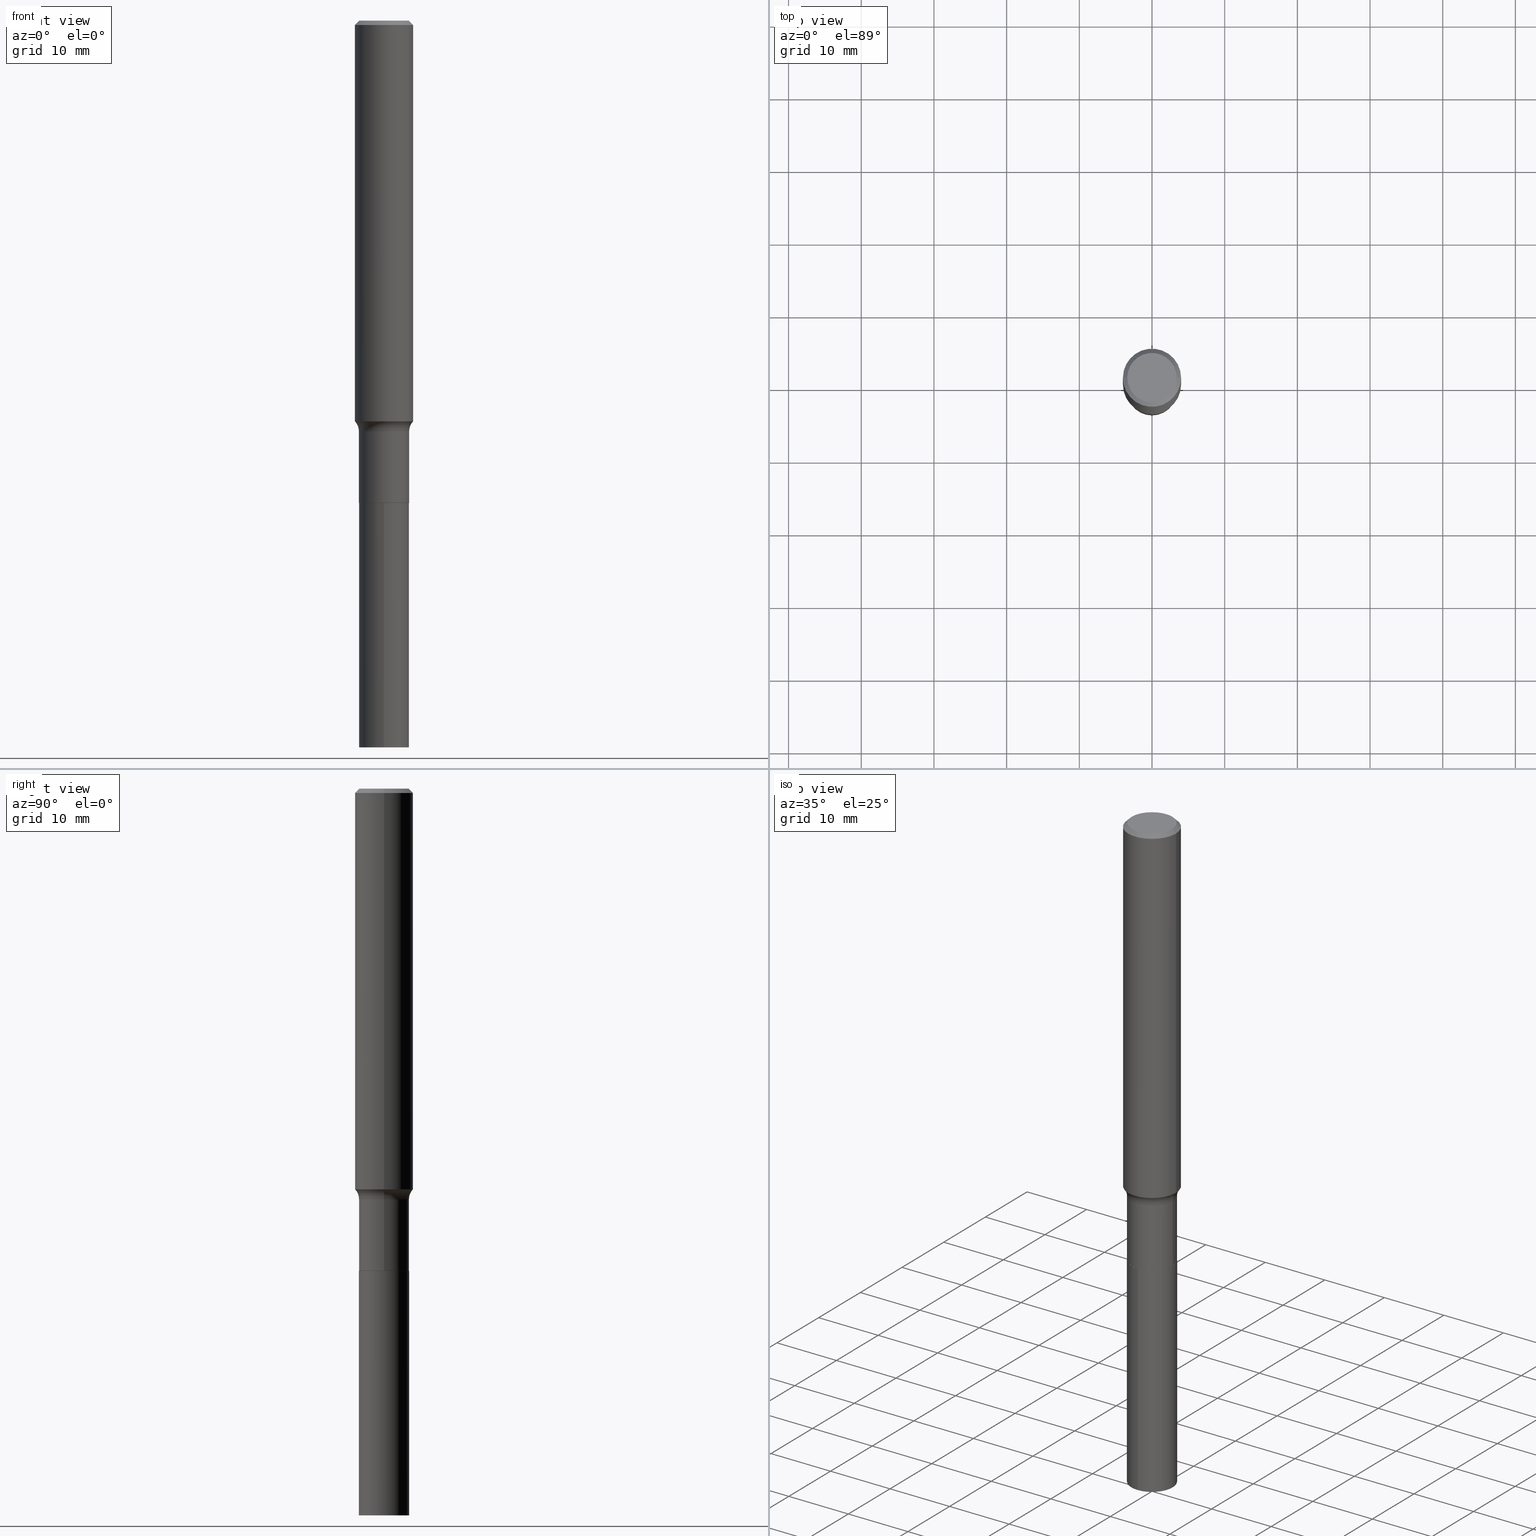
[diagram: canonical four-view strip — front | top / right | iso, engineering-drawing reading convention]
A machine part, canonical four-view strip (front | top / right | iso — engineering-drawing reading convention). The complete STEP part file that produces these views, byte-faithful:
ISO-10303-21;
HEADER;
FILE_DESCRIPTION (( 'STEP AP203' ),
    '1' );
FILE_NAME ('58892.STEP',
    '2024-04-19T14:48:13',
    ( '' ),
    ( '' ),
    'SwSTEP 2.0',
    'SolidWorks 2023',
    '' );
FILE_SCHEMA (( 'CONFIG_CONTROL_DESIGN' ));
ENDSEC;

DATA;
#1 = MANIFOLD_SOLID_BREP ( 'Body-Move/Copy2[2]', #74 ) ;
#2 = APPROVAL_DATE_TIME ( #335, #308 ) ;
#3 = CARTESIAN_POINT ( 'NONE',  ( 6.390009990561761936E-29, -9.123240738397140526E-15, -2.613000000000000433 ) ) ;
#4 = VERTEX_POINT ( 'NONE', #388 ) ;
#5 = PLANE ( 'NONE',  #392 ) ;
#6 = ORIENTED_EDGE ( 'NONE', *, *, #352, .F. ) ;
#7 = PERSON_AND_ORGANIZATION ( #11, #245 ) ;
#8 = VERTEX_POINT ( 'NONE', #382 ) ;
#9 = EDGE_LOOP ( 'NONE', ( #42, #71, #271, #145 ) ) ;
#10 = CALENDAR_DATE ( 2024, 19, 4 ) ;
#11 = PERSON ( 'UNSPECIFIED', 'UNSPECIFIED', 'UNSPECIFIED', ('UNSPECIFIED'), ('UNSPECIFIED'), ('UNSPECIFIED') ) ;
#12 = EDGE_CURVE ( 'NONE', #379, #257, #125, .T. ) ;
#13 = DIRECTION ( 'NONE',  ( -6.982962677686265922E-15, -1.000000000000000000, 4.017423520094504617E-15 ) ) ;
#14 = FACE_OUTER_BOUND ( 'NONE', #320, .T. ) ;
#15 = DIRECTION ( 'NONE',  ( -2.445468806185136597E-29, 3.491481338843145583E-15, 1.000000000000000000 ) ) ;
#16 = CIRCLE ( 'NONE', #311, 0.1359999999999999543 ) ;
#17 = CIRCLE ( 'NONE', #357, 0.1360000000000000098 ) ;
#18 = ORIENTED_EDGE ( 'NONE', *, *, #200, .T. ) ;
#19 = CARTESIAN_POINT ( 'NONE',  ( 6.390009990561761936E-29, -9.123240738397140526E-15, -2.613000000000000433 ) ) ;
#20 = CC_DESIGN_PERSON_AND_ORGANIZATION_ASSIGNMENT ( #48, #149, ( #127 ) ) ;
#21 = EDGE_CURVE ( 'NONE', #8, #210, #16, .T. ) ;
#22 = CARTESIAN_POINT ( 'NONE',  ( 5.441657187523166048E-29, -7.769244275193768716E-15, -2.225200000000000511 ) ) ;
#23 = DIRECTION ( 'NONE',  ( -2.445468806185136877E-29, 3.491481338843145188E-15, 1.000000000000000000 ) ) ;
#24 = AXIS2_PLACEMENT_3D ( 'NONE', #214, #202, #101 ) ;
#25 = ORIENTED_EDGE ( 'NONE', *, *, #64, .F. ) ;
#26 = AXIS2_PLACEMENT_3D ( 'NONE', #255, #282, #173 ) ;
#27 = PLANE ( 'NONE',  #204 ) ;
#28 = ADVANCED_FACE ( 'NONE', ( #163 ), #290, .T. ) ;
#29 = ORIENTED_EDGE ( 'NONE', *, *, #153, .F. ) ;
#30 = CARTESIAN_POINT ( 'NONE',  ( -0.2159999999999999698, -6.234471965951952529E-15, -2.225200000000000511 ) ) ;
#31 = DIRECTION ( 'NONE',  ( 1.000000000000000000, -6.982962677686264344E-15, 0.000000000000000000 ) ) ;
#32 = EDGE_CURVE ( 'NONE', #47, #358, #391, .T. ) ;
#33 = EDGE_LOOP ( 'NONE', ( #100, #295, #50, #450 ) ) ;
#34 = CYLINDRICAL_SURFACE ( 'NONE', #119, 0.1575000000000001676 ) ;
#35 = ORIENTED_EDGE ( 'NONE', *, *, #365, .T. ) ;
#36 = DIRECTION ( 'NONE',  ( -2.445468806185136597E-29, 3.491481338843145583E-15, 1.000000000000000000 ) ) ;
#37 = CARTESIAN_POINT ( 'NONE',  ( 9.627366479566132593E-29, -1.374659816557931194E-14, -3.937000000000000277 ) ) ;
#38 = ADVANCED_FACE ( 'NONE', ( #281 ), #131, .T. ) ;
#39 = LINE ( 'NONE', #105, #244 ) ;
#40 = ADVANCED_BREP_SHAPE_REPRESENTATION ( '58892', ( #157, #1, #150 ), #366 ) ;
#41 = CARTESIAN_POINT ( 'NONE',  ( 5.777420054612421104E-31, -8.248624663016984002E-17, -0.02362500000000014588 ) ) ;
#42 = ORIENTED_EDGE ( 'NONE', *, *, #419, .F. ) ;
#43 = CARTESIAN_POINT ( 'NONE',  ( -0.1575000000000002787, -6.459613645325440815E-15, -2.170631236041119738 ) ) ;
#44 = APPROVAL_STATUS ( 'not_yet_approved' ) ;
#45 = CONICAL_SURFACE ( 'NONE', #452, 0.1575000000000000011, 0.7853981633974449483 ) ;
#46 = ORIENTED_EDGE ( 'NONE', *, *, #200, .F. ) ;
#47 = VERTEX_POINT ( 'NONE', #66 ) ;
#48 = PERSON_AND_ORGANIZATION ( #11, #245 ) ;
#49 = ORIENTED_EDGE ( 'NONE', *, *, #341, .F. ) ;
#50 = ORIENTED_EDGE ( 'NONE', *, *, #212, .F. ) ;
#51 = AXIS2_PLACEMENT_3D ( 'NONE', #309, #451, #124 ) ;
#52 = PRODUCT_DEFINITION_SHAPE ( 'NONE', 'NONE',  #385 ) ;
#53 = LOCAL_TIME ( 10, 48, 13.00000000000000000, #113 ) ;
#54 = PERSON_AND_ORGANIZATION ( #11, #245 ) ;
#55 = DIRECTION ( 'NONE',  ( -1.000000000000000000, 6.982962677686265922E-15, 0.000000000000000000 ) ) ;
#56 = DIRECTION ( 'NONE',  ( 0.7071067811865451302, -7.319954787623248157E-15, -0.7071067811865499042 ) ) ;
#57 = CARTESIAN_POINT ( 'NONE',  ( 0.000000000000000000, 0.000000000000000000, 0.000000000000000000 ) ) ;
#58 = EDGE_LOOP ( 'NONE', ( #6, #224, #353, #337 ) ) ;
#59 = CARTESIAN_POINT ( 'NONE',  ( -9.496829241652681619E-16, -0.1360000000000091136, -2.612999999999999101 ) ) ;
#60 = VECTOR ( 'NONE', #162, 39.37007874015748854 ) ;
#61 = CC_DESIGN_DATE_AND_TIME_ASSIGNMENT ( #191, #378, ( #385 ) ) ;
#62 = DIRECTION ( 'NONE',  ( -2.445468806185136597E-29, 3.491481338843145583E-15, 1.000000000000000000 ) ) ;
#63 = CARTESIAN_POINT ( 'NONE',  ( 0.1359999999999999543, -9.496829241653320596E-16, 6.631600415082470604E-30 ) ) ;
#64 = EDGE_CURVE ( 'NONE', #257, #8, #229, .T. ) ;
#65 = AXIS2_PLACEMENT_3D ( 'NONE', #188, #15, #338 ) ;
#66 = CARTESIAN_POINT ( 'NONE',  ( -0.1355000000000000093, -8.157806104268093113E-15, -2.613000000000000433 ) ) ;
#67 = CARTESIAN_POINT ( 'NONE',  ( -0.1355000000000000093, -8.160455331442205103E-15, -2.613000000000000433 ) ) ;
#68 = PLANE ( 'NONE',  #253 ) ;
#69 = DIRECTION ( 'NONE',  ( -2.445133299852242876E-29, 3.491961803007683385E-15, 1.000000000000000000 ) ) ;
#70 = DIRECTION ( 'NONE',  ( -2.445133299852243437E-29, 3.491961803007682991E-15, 1.000000000000000000 ) ) ;
#71 = ORIENTED_EDGE ( 'NONE', *, *, #352, .T. ) ;
#72 = FACE_OUTER_BOUND ( 'NONE', #238, .T. ) ;
#73 = EDGE_LOOP ( 'NONE', ( #349, #359, #287, #428 ) ) ;
#74 = CLOSED_SHELL ( 'NONE', ( #129, #28, #233, #141, #99, #438, #446, #404, #416, #322, #269, #316 ) ) ;
#75 = DIRECTION ( 'NONE',  ( -2.445468806185136597E-29, 3.491481338843145583E-15, 1.000000000000000000 ) ) ;
#76 = VECTOR ( 'NONE', #268, 39.37007874015748143 ) ;
#77 = EDGE_CURVE ( 'NONE', #275, #207, #90, .T. ) ;
#78 = DIRECTION ( 'NONE',  ( -1.000000000000000000, 6.982962677686265922E-15, 0.000000000000000000 ) ) ;
#79 = DIRECTION ( 'NONE',  ( -1.000000000000000000, 6.982962677686265922E-15, -4.876176775795935793E-29 ) ) ;
#80 = EDGE_CURVE ( 'NONE', #285, #210, #456, .T. ) ;
#81 = ADVANCED_FACE ( 'NONE', ( #421 ), #27, .F. ) ;
#82 = CALENDAR_DATE ( 2024, 19, 4 ) ;
#83 = CIRCLE ( 'NONE', #468, 0.1360000000000000098 ) ;
#84 = VERTEX_POINT ( 'NONE', #165 ) ;
#85 = DIRECTION ( 'NONE',  ( 1.000000000000000000, -6.982962677686265922E-15, 4.876176775795935793E-29 ) ) ;
#86 = EDGE_LOOP ( 'NONE', ( #300, #377 ) ) ;
#87 = DIRECTION ( 'NONE',  ( -2.445468806185136597E-29, 3.491481338843145583E-15, 1.000000000000000000 ) ) ;
#88 = APPROVAL_DATE_TIME ( #178, #466 ) ;
#89 = ORIENTED_EDGE ( 'NONE', *, *, #151, .T. ) ;
#90 = CIRCLE ( 'NONE', #356, 0.1338749999999999940 ) ;
#91 = AXIS2_PLACEMENT_3D ( 'NONE', #304, #118, #120 ) ;
#92 = LOCAL_TIME ( 10, 48, 13.00000000000000000, #409 ) ;
#93 = DIRECTION ( 'NONE',  ( -2.445133299852243437E-29, 3.491961803007682991E-15, 1.000000000000000000 ) ) ;
#94 = LINE ( 'NONE', #194, #76 ) ;
#95 = DIRECTION ( 'NONE',  ( 1.000000000000000000, -6.982962677686262766E-15, 0.000000000000000000 ) ) ;
#96 = DIRECTION ( 'NONE',  ( 1.000000000000000000, -6.982962677686267499E-15, 0.000000000000000000 ) ) ;
#97 = FACE_OUTER_BOUND ( 'NONE', #317, .T. ) ;
#98 = CARTESIAN_POINT ( 'NONE',  ( 9.627810689950883669E-29, -1.374596203102546341E-14, -3.937000000000000277 ) ) ;
#99 = ADVANCED_FACE ( 'NONE', ( #314 ), #454, .T. ) ;
#100 = ORIENTED_EDGE ( 'NONE', *, *, #266, .T. ) ;
#101 = DIRECTION ( 'NONE',  ( -6.982962677686265922E-15, -1.000000000000000000, 4.017423520094504617E-15 ) ) ;
#102 = ORIENTED_EDGE ( 'NONE', *, *, #77, .F. ) ;
#103 = AXIS2_PLACEMENT_3D ( 'NONE', #3, #333, #326 ) ;
#104 = DIRECTION ( 'NONE',  ( 1.000000000000000000, -6.982962677686267499E-15, 4.876176775795935793E-29 ) ) ;
#105 = CARTESIAN_POINT ( 'NONE',  ( -0.1575000000000001676, 1.119104808822158984E-15, -7.747322767151485392E-30 ) ) ;
#106 = EDGE_LOOP ( 'NONE', ( #180, #230, #331, #375 ) ) ;
#107 = CARTESIAN_POINT ( 'NONE',  ( 0.000000000000000000, 0.000000000000000000, 0.000000000000000000 ) ) ;
#108 = DIRECTION ( 'NONE',  ( 0.7071067811860403118, -2.468850131076945266E-15, 0.7071067811870545006 ) ) ;
#109 = ORIENTED_EDGE ( 'NONE', *, *, #380, .T. ) ;
#110 = PERSON_AND_ORGANIZATION ( #11, #245 ) ;
#111 = CARTESIAN_POINT ( 'NONE',  ( -9.674237826946843796E-30, -1.965950466082476908E-14, -2.612999999999999545 ) ) ;
#112 = AXIS2_PLACEMENT_3D ( 'NONE', #41, #75, #256 ) ;
#113 = COORDINATED_UNIVERSAL_TIME_OFFSET ( 5, 0, .BEHIND. ) ;
#114 = ORIENTED_EDGE ( 'NONE', *, *, #21, .F. ) ;
#115 = DATE_AND_TIME ( #82, #179 ) ;
#116 = DIRECTION ( 'NONE',  ( 1.000000000000000000, -6.982962677686260400E-15, 0.000000000000000000 ) ) ;
#117 = CALENDAR_DATE ( 2024, 19, 4 ) ;
#118 = DIRECTION ( 'NONE',  ( -2.445133299852243437E-29, 3.491961803007682991E-15, 1.000000000000000000 ) ) ;
#119 = AXIS2_PLACEMENT_3D ( 'NONE', #107, #286, #405 ) ;
#120 = DIRECTION ( 'NONE',  ( -6.982962677686265922E-15, -1.000000000000000000, 4.017423520094504617E-15 ) ) ;
#121 = EDGE_CURVE ( 'NONE', #84, #4, #373, .T. ) ;
#122 = UNCERTAINTY_MEASURE_WITH_UNIT (LENGTH_MEASURE( 1.000000000000000082E-05 ), #132, 'distance_accuracy_value', 'NONE');
#123 = DIRECTION ( 'NONE',  ( -2.445468806185136597E-29, 3.491481338843145583E-15, 1.000000000000000000 ) ) ;
#124 = DIRECTION ( 'NONE',  ( -6.982962677686265922E-15, -1.000000000000000000, 4.017423520094504617E-15 ) ) ;
#125 = CIRCLE ( 'NONE', #400, 0.1575000000000003064 ) ;
#126 = VECTOR ( 'NONE', #135, 39.37007874015748143 ) ;
#127 = PRODUCT_DEFINITION_FORMATION_WITH_SPECIFIED_SOURCE ( 'ANY', '', #344, .NOT_KNOWN. ) ;
#128 = DIRECTION ( 'NONE',  ( 7.105427357601001859E-15, 1.000000000000000000, -3.491481338843145583E-15 ) ) ;
#129 = ADVANCED_FACE ( 'NONE', ( #209 ), #408, .T. ) ;
#130 = DIRECTION ( 'NONE',  ( -2.445468806185136597E-29, 3.491481338843145583E-15, 1.000000000000000000 ) ) ;
#131 = CYLINDRICAL_SURFACE ( 'NONE', #24, 0.1360000000000000098 ) ;
#132 =( CONVERSION_BASED_UNIT ( 'INCH', #457 ) LENGTH_UNIT ( ) NAMED_UNIT ( #420 ) );
#133 = TOROIDAL_SURFACE ( 'NONE', #460, 0.2159999999999999698, 0.07999999999999996003 ) ;
#134 = AXIS2_PLACEMENT_3D ( 'NONE', #397, #292, #172 ) ;
#135 = DIRECTION ( 'NONE',  ( -0.7071067811865451302, 2.468850131082231817E-15, -0.7071067811865499042 ) ) ;
#136 = CC_DESIGN_APPROVAL ( #466, ( #319 ) ) ;
#137 = CC_DESIGN_PERSON_AND_ORGANIZATION_ASSIGNMENT ( #406, #444, ( #319 ) ) ;
#138 = ORIENTED_EDGE ( 'NONE', *, *, #328, .F. ) ;
#139 = CARTESIAN_POINT ( 'NONE',  ( 0.1575000000000001676, -1.099816621735588269E-15, 7.679978421878606441E-30 ) ) ;
#140 = DIRECTION ( 'NONE',  ( -2.445468806185136597E-29, 3.491481338843145583E-15, 1.000000000000000000 ) ) ;
#141 = ADVANCED_FACE ( 'NONE', ( #355 ), #133, .F. ) ;
#142 = CIRCLE ( 'NONE', #273, 0.1360000000000000098 ) ;
#143 = PERSON_AND_ORGANIZATION_ROLE ( 'creator' ) ;
#144 = EDGE_CURVE ( 'NONE', #210, #8, #258, .T. ) ;
#145 = ORIENTED_EDGE ( 'NONE', *, *, #121, .F. ) ;
#146 = APPROVAL_ROLE ( '' ) ;
#147 = DIRECTION ( 'NONE',  ( -2.438088387897960049E-29, 3.491481338843145188E-15, 1.000000000000000000 ) ) ;
#148 = ORIENTED_EDGE ( 'NONE', *, *, #280, .F. ) ;
#149 = PERSON_AND_ORGANIZATION_ROLE ( 'design_supplier' ) ;
#150 = AXIS2_PLACEMENT_3D ( 'NONE', #223, #434, #262 ) ;
#151 = EDGE_CURVE ( 'NONE', #263, #398, #422, .T. ) ;
#152 = EDGE_LOOP ( 'NONE', ( #248, #278 ) ) ;
#153 = EDGE_CURVE ( 'NONE', #47, #261, #390, .T. ) ;
#154 = ORIENTED_EDGE ( 'NONE', *, *, #419, .T. ) ;
#155 = SECURITY_CLASSIFICATION_LEVEL ( 'unclassified' ) ;
#156 = LINE ( 'NONE', #384, #215 ) ;
#157 = MANIFOLD_SOLID_BREP ( 'Body-Move/Copy2[1]', #177 ) ;
#158 = CARTESIAN_POINT ( 'NONE',  ( 9.627366479566132593E-29, -1.374659816557931194E-14, -3.937000000000000277 ) ) ;
#159 = EDGE_CURVE ( 'NONE', #398, #227, #231, .T. ) ;
#160 = AXIS2_PLACEMENT_3D ( 'NONE', #57, #240, #203 ) ;
#161 = EDGE_CURVE ( 'NONE', #207, #4, #156, .T. ) ;
#162 = DIRECTION ( 'NONE',  ( -0.7071067811860403118, 7.493145998868519270E-15, 0.7071067811870545006 ) ) ;
#163 = FACE_OUTER_BOUND ( 'NONE', #190, .T. ) ;
#164 = CIRCLE ( 'NONE', #91, 0.1360000000000000098 ) ;
#165 = CARTESIAN_POINT ( 'NONE',  ( -0.1575000000000000011, -2.711497541566724726E-15, -0.02362500000000014588 ) ) ;
#166 = CARTESIAN_POINT ( 'NONE',  ( 5.441657187523166048E-29, -7.769244275193768716E-15, -2.225200000000000511 ) ) ;
#167 = DIRECTION ( 'NONE',  ( -6.982962677686265922E-15, -1.000000000000000000, 3.491961803007683385E-15 ) ) ;
#168 = DIRECTION ( 'NONE',  ( -6.982962677686265922E-15, -1.000000000000000000, 4.017423520094504617E-15 ) ) ;
#169 = PRODUCT_RELATED_PRODUCT_CATEGORY ( 'detail', '', ( #344 ) ) ;
#170 = EDGE_LOOP ( 'NONE', ( #25, #313, #362, #413 ) ) ;
#171 = CIRCLE ( 'NONE', #112, 0.1575000000000000011 ) ;
#172 = DIRECTION ( 'NONE',  ( 1.000000000000000000, -6.982962677686265922E-15, 4.883557194083112340E-29 ) ) ;
#173 = DIRECTION ( 'NONE',  ( 6.982962677686265922E-15, 1.000000000000000000, -3.491961803007683385E-15 ) ) ;
#174 = DIRECTION ( 'NONE',  ( -2.445468806185136877E-29, 3.491481338843145188E-15, 1.000000000000000000 ) ) ;
#175 = ORIENTED_EDGE ( 'NONE', *, *, #32, .F. ) ;
#176 = EDGE_CURVE ( 'NONE', #411, #227, #94, .T. ) ;
#177 = CLOSED_SHELL ( 'NONE', ( #185, #81, #38, #431 ) ) ;
#178 = DATE_AND_TIME ( #412, #53 ) ;
#179 = LOCAL_TIME ( 10, 48, 13.00000000000000000, #267 ) ;
#180 = ORIENTED_EDGE ( 'NONE', *, *, #212, .T. ) ;
#181 = APPLICATION_PROTOCOL_DEFINITION ( 'international standard', 'config_control_design', 1994, #449 ) ;
#182 = CARTESIAN_POINT ( 'NONE',  ( -0.1360000000000000098, -7.479031515827007153E-15, -2.612499999999999378 ) ) ;
#183 = ORIENTED_EDGE ( 'NONE', *, *, #32, .T. ) ;
#184 = COORDINATED_UNIVERSAL_TIME_OFFSET ( 5, 0, .BEHIND. ) ;
#185 = ADVANCED_FACE ( 'NONE', ( #14 ), #234, .T. ) ;
#186 = EDGE_LOOP ( 'NONE', ( #29, #183, #109, #148 ) ) ;
#187 = EDGE_CURVE ( 'NONE', #263, #411, #142, .T. ) ;
#188 = CARTESIAN_POINT ( 'NONE',  ( 6.390009990561761936E-29, -9.123240738397140526E-15, -2.613000000000000433 ) ) ;
#189 = DATE_TIME_ROLE ( 'classification_date' ) ;
#190 = EDGE_LOOP ( 'NONE', ( #138, #250, #372, #242 ) ) ;
#191 = DATE_AND_TIME ( #10, #299 ) ;
#192 = CARTESIAN_POINT ( 'NONE',  ( 6.390009990561761936E-29, -9.123240738397140526E-15, -2.613000000000000433 ) ) ;
#193 = APPROVAL ( #264, 'UNSPECIFIED' ) ;
#194 = CARTESIAN_POINT ( 'NONE',  ( -9.496829241652681619E-16, -0.1360000000000091136, -2.612999999999999101 ) ) ;
#195 = DIRECTION ( 'NONE',  ( 1.000000000000000000, -6.982962677686262766E-15, 0.000000000000000000 ) ) ;
#196 = CARTESIAN_POINT ( 'NONE',  ( 0.2159999999999999698, -9.277564213574001442E-15, -2.225200000000000511 ) ) ;
#197 = AXIS2_PLACEMENT_3D ( 'NONE', #19, #310, #31 ) ;
#198 = AXIS2_PLACEMENT_3D ( 'NONE', #196, #346, #95 ) ;
#199 = CARTESIAN_POINT ( 'NONE',  ( 5.308210977469644708E-29, -7.578718454147599996E-15, -2.170631236041119738 ) ) ;
#200 = EDGE_CURVE ( 'NONE', #227, #398, #164, .T. ) ;
#201 = DIRECTION ( 'NONE',  ( 1.000000000000000000, -6.982962677686267499E-15, 4.876176775795935232E-29 ) ) ;
#202 = DIRECTION ( 'NONE',  ( -2.445133299852243437E-29, 3.491961803007682991E-15, 1.000000000000000000 ) ) ;
#203 = DIRECTION ( 'NONE',  ( 1.000000000000000000, -6.982962677686267499E-15, 4.876176775795935793E-29 ) ) ;
#204 = AXIS2_PLACEMENT_3D ( 'NONE', #98, #69, #167 ) ;
#205 = VECTOR ( 'NONE', #23, 39.37007874015748143 ) ;
#206 = APPROVAL_PERSON_ORGANIZATION ( #298, #466, #340 ) ;
#207 = VERTEX_POINT ( 'NONE', #445 ) ;
#208 = DIRECTION ( 'NONE',  ( -2.445468806185136877E-29, 3.491481338843145188E-15, 1.000000000000000000 ) ) ;
#209 = FACE_OUTER_BOUND ( 'NONE', #33, .T. ) ;
#210 = VERTEX_POINT ( 'NONE', #270 ) ;
#211 = FACE_OUTER_BOUND ( 'NONE', #9, .T. ) ;
#212 = EDGE_CURVE ( 'NONE', #285, #261, #17, .T. ) ;
#213 = ORIENTED_EDGE ( 'NONE', *, *, #159, .T. ) ;
#214 = CARTESIAN_POINT ( 'NONE',  ( 6.390009990561760815E-29, -9.123240738397138949E-15, -2.612999999999999545 ) ) ;
#215 = VECTOR ( 'NONE', #56, 39.37007874015748143 ) ;
#216 = ORIENTED_EDGE ( 'NONE', *, *, #12, .T. ) ;
#217 = CARTESIAN_POINT ( 'NONE',  ( 9.663381206338327605E-16, 0.1359999999999908782, -2.613000000000000433 ) ) ;
#218 = CYLINDRICAL_SURFACE ( 'NONE', #312, 0.1359999999999999543 ) ;
#219 = DIRECTION ( 'NONE',  ( 2.445468806185136597E-29, -3.491481338843145583E-15, -1.000000000000000000 ) ) ;
#220 = APPROVAL_DATE_TIME ( #376, #193 ) ;
#221 = ORIENTED_EDGE ( 'NONE', *, *, #121, .T. ) ;
#222 = EDGE_CURVE ( 'NONE', #379, #210, #461, .T. ) ;
#223 = CARTESIAN_POINT ( 'NONE',  ( 0.000000000000000000, 0.000000000000000000, 0.000000000000000000 ) ) ;
#224 = ORIENTED_EDGE ( 'NONE', *, *, #64, .T. ) ;
#225 = FACE_OUTER_BOUND ( 'NONE', #186, .T. ) ;
#226 = SHAPE_DEFINITION_REPRESENTATION ( #52, #40 ) ;
#227 = VERTEX_POINT ( 'NONE', #59 ) ;
#228 = APPLICATION_PROTOCOL_DEFINITION ( 'international standard', 'config_control_design', 1994, #426 ) ;
#229 = CIRCLE ( 'NONE', #347, 0.07999999999999996003 ) ;
#230 = ORIENTED_EDGE ( 'NONE', *, *, #252, .T. ) ;
#231 = CIRCLE ( 'NONE', #51, 0.1360000000000000098 ) ;
#232 = CARTESIAN_POINT ( 'NONE',  ( 6.388787256158668014E-29, -9.121494997727716656E-15, -2.612499999999999378 ) ) ;
#233 = ADVANCED_FACE ( 'NONE', ( #97 ), #239, .T. ) ;
#234 = CYLINDRICAL_SURFACE ( 'NONE', #447, 0.1360000000000000098 ) ;
#235 = DIRECTION ( 'NONE',  ( -2.445468806185136597E-29, 3.491481338843145583E-15, 1.000000000000000000 ) ) ;
#236 = AXIS2_PLACEMENT_3D ( 'NONE', #166, #130, #279 ) ;
#237 = CC_DESIGN_APPROVAL ( #193, ( #127 ) ) ;
#238 = EDGE_LOOP ( 'NONE', ( #437, #102, #35, #221 ) ) ;
#239 = CYLINDRICAL_SURFACE ( 'NONE', #284, 0.1575000000000001676 ) ;
#240 = DIRECTION ( 'NONE',  ( -2.445468806185136597E-29, 3.491481338843145583E-15, 1.000000000000000000 ) ) ;
#241 = CARTESIAN_POINT ( 'NONE',  ( -0.1359999999999999543, 9.663381206337359278E-16, -6.689751722746669307E-30 ) ) ;
#242 = ORIENTED_EDGE ( 'NONE', *, *, #365, .F. ) ;
#243 = DIRECTION ( 'NONE',  ( -2.445133299852243437E-29, 3.491961803007683385E-15, 1.000000000000000000 ) ) ;
#244 = VECTOR ( 'NONE', #289, 39.37007874015748143 ) ;
#245 = ORGANIZATION ( 'UNSPECIFIED', 'UNSPECIFIED', '' ) ;
#246 = CARTESIAN_POINT ( 'NONE',  ( 9.663381206338000227E-16, 0.1359999999999908782, -2.613000000000000433 ) ) ;
#247 =( NAMED_UNIT ( * ) PLANE_ANGLE_UNIT ( ) SI_UNIT ( $, .RADIAN. ) );
#248 = ORIENTED_EDGE ( 'NONE', *, *, #330, .F. ) ;
#249 = CARTESIAN_POINT ( 'NONE',  ( 0.000000000000000000, 0.000000000000000000, 0.000000000000000000 ) ) ;
#250 = ORIENTED_EDGE ( 'NONE', *, *, #161, .T. ) ;
#251 = CARTESIAN_POINT ( 'NONE',  ( -9.496829241652358186E-16, -0.1360000000000137488, -3.936999999999999389 ) ) ;
#252 = EDGE_CURVE ( 'NONE', #261, #8, #351, .T. ) ;
#253 = AXIS2_PLACEMENT_3D ( 'NONE', #462, #433, #79 ) ;
#254 = CC_DESIGN_APPROVAL ( #308, ( #385 ) ) ;
#255 = CARTESIAN_POINT ( 'NONE',  ( 6.390009990561760815E-29, -9.123240738397138949E-15, -2.612999999999999545 ) ) ;
#256 = DIRECTION ( 'NONE',  ( 1.000000000000000000, -6.982962677686265922E-15, 0.000000000000000000 ) ) ;
#257 = VERTEX_POINT ( 'NONE', #43 ) ;
#258 = CIRCLE ( 'NONE', #236, 0.1359999999999999543 ) ;
#259 = APPROVAL_ROLE ( '' ) ;
#260 = CIRCLE ( 'NONE', #103, 0.1355000000000000093 ) ;
#261 = VERTEX_POINT ( 'NONE', #182 ) ;
#262 = DIRECTION ( 'NONE',  ( 1.000000000000000000, 0.000000000000000000, 0.000000000000000000 ) ) ;
#263 = VERTEX_POINT ( 'NONE', #410 ) ;
#264 = APPROVAL_STATUS ( 'not_yet_approved' ) ;
#265 = CARTESIAN_POINT ( 'NONE',  ( 5.777420054612421104E-31, -8.248624663016984002E-17, -0.02362500000000014588 ) ) ;
#266 = EDGE_CURVE ( 'NONE', #358, #47, #260, .T. ) ;
#267 = COORDINATED_UNIVERSAL_TIME_OFFSET ( 5, 0, .BEHIND. ) ;
#268 = DIRECTION ( 'NONE',  ( -2.445133299852243437E-29, 3.491961803007683385E-15, 1.000000000000000000 ) ) ;
#269 = ADVANCED_FACE ( 'NONE', ( #371 ), #5, .F. ) ;
#270 = CARTESIAN_POINT ( 'NONE',  ( 0.1359999999999999543, -8.718927199359099789E-15, -2.225200000000000511 ) ) ;
#271 = ORIENTED_EDGE ( 'NONE', *, *, #369, .T. ) ;
#272 = DIRECTION ( 'NONE',  ( -2.445468806185136597E-29, 3.491481338843145583E-15, 1.000000000000000000 ) ) ;
#273 = AXIS2_PLACEMENT_3D ( 'NONE', #158, #345, #448 ) ;
#274 = APPROVAL_PERSON_ORGANIZATION ( #110, #193, #146 ) ;
#275 = VERTEX_POINT ( 'NONE', #336 ) ;
#276 = DIRECTION ( 'NONE',  ( 1.000000000000000000, -6.982962677686266711E-15, 4.876170806578254279E-29 ) ) ;
#277 = DIRECTION ( 'NONE',  ( -2.445468806185136597E-29, 3.491481338843145583E-15, 1.000000000000000000 ) ) ;
#278 = ORIENTED_EDGE ( 'NONE', *, *, #187, .F. ) ;
#279 = DIRECTION ( 'NONE',  ( 1.000000000000000000, -6.982962677686262766E-15, 0.000000000000000000 ) ) ;
#280 = EDGE_CURVE ( 'NONE', #261, #285, #83, .T. ) ;
#281 = FACE_OUTER_BOUND ( 'NONE', #73, .T. ) ;
#282 = DIRECTION ( 'NONE',  ( 2.445133299852242876E-29, -3.491961803007683385E-15, -1.000000000000000000 ) ) ;
#283 = AXIS2_PLACEMENT_3D ( 'NONE', #423, #277, #350 ) ;
#284 = AXIS2_PLACEMENT_3D ( 'NONE', #389, #62, #201 ) ;
#285 = VERTEX_POINT ( 'NONE', #383 ) ;
#286 = DIRECTION ( 'NONE',  ( -2.445468806185136597E-29, 3.491481338843145583E-15, 1.000000000000000000 ) ) ;
#287 = ORIENTED_EDGE ( 'NONE', *, *, #176, .T. ) ;
#288 = CARTESIAN_POINT ( 'NONE',  ( 0.1575000000000002787, -8.678535075883189843E-15, -2.170631236041119738 ) ) ;
#289 = DIRECTION ( 'NONE',  ( -2.445468806185136877E-29, 3.491481338843145188E-15, 1.000000000000000000 ) ) ;
#290 = CONICAL_SURFACE ( 'NONE', #424, 0.1575000000000000011, 0.7853981633974449483 ) ;
#291 = VECTOR ( 'NONE', #108, 39.37007874015748854 ) ;
#292 = DIRECTION ( 'NONE',  ( -2.445468806185136597E-29, 3.491481338843145583E-15, 1.000000000000000000 ) ) ;
#293 = PERSON_AND_ORGANIZATION_ROLE ( 'design_owner' ) ;
#294 = CC_DESIGN_PERSON_AND_ORGANIZATION_ASSIGNMENT ( #7, #143, ( #385 ) ) ;
#295 = ORIENTED_EDGE ( 'NONE', *, *, #153, .T. ) ;
#296 = PERSON_AND_ORGANIZATION ( #11, #245 ) ;
#297 = ORIENTED_EDGE ( 'NONE', *, *, #176, .F. ) ;
#298 = PERSON_AND_ORGANIZATION ( #11, #245 ) ;
#299 = LOCAL_TIME ( 10, 48, 13.00000000000000000, #332 ) ;
#300 = ORIENTED_EDGE ( 'NONE', *, *, #77, .T. ) ;
#301 = MECHANICAL_CONTEXT ( 'NONE', #449, 'mechanical' ) ;
#302 = EDGE_LOOP ( 'NONE', ( #18, #213 ) ) ;
#303 = PERSON_AND_ORGANIZATION ( #11, #245 ) ;
#304 = CARTESIAN_POINT ( 'NONE',  ( 6.390009990561760815E-29, -9.123240738397138949E-15, -2.612999999999999545 ) ) ;
#305 = DIRECTION ( 'NONE',  ( -2.445468806185136597E-29, 3.491481338843145583E-15, 1.000000000000000000 ) ) ;
#306 = VECTOR ( 'NONE', #208, 39.37007874015748143 ) ;
#307 = VECTOR ( 'NONE', #243, 39.37007874015748143 ) ;
#308 = APPROVAL ( #44, 'UNSPECIFIED' ) ;
#309 = CARTESIAN_POINT ( 'NONE',  ( 6.390009990561760815E-29, -9.123240738397138949E-15, -2.612999999999999545 ) ) ;
#310 = DIRECTION ( 'NONE',  ( -2.445468806185136597E-29, 3.491481338843145583E-15, 1.000000000000000000 ) ) ;
#311 = AXIS2_PLACEMENT_3D ( 'NONE', #22, #235, #195 ) ;
#312 = AXIS2_PLACEMENT_3D ( 'NONE', #249, #325, #104 ) ;
#313 = ORIENTED_EDGE ( 'NONE', *, *, #12, .F. ) ;
#314 = FACE_OUTER_BOUND ( 'NONE', #106, .T. ) ;
#315 = CARTESIAN_POINT ( 'NONE',  ( 5.441657187523166048E-29, -7.769244275193768716E-15, -2.225200000000000511 ) ) ;
#316 = ADVANCED_FACE ( 'NONE', ( #225 ), #374, .T. ) ;
#317 = EDGE_LOOP ( 'NONE', ( #216, #154, #49, #407 ) ) ;
#318 = CARTESIAN_POINT ( 'NONE',  ( 0.1355000000000000093, -1.006943218122363017E-14, -2.613000000000000433 ) ) ;
#319 = SECURITY_CLASSIFICATION ( '', '', #155 ) ;
#320 = EDGE_LOOP ( 'NONE', ( #334, #89, #46, #297 ) ) ;
#321 = FACE_OUTER_BOUND ( 'NONE', #170, .T. ) ;
#322 = ADVANCED_FACE ( 'NONE', ( #361 ), #68, .F. ) ;
#323 = LINE ( 'NONE', #139, #401 ) ;
#324 = DESIGN_CONTEXT ( 'detailed design', #426, 'design' ) ;
#325 = DIRECTION ( 'NONE',  ( -2.445468806185136597E-29, 3.491481338843145583E-15, 1.000000000000000000 ) ) ;
#326 = DIRECTION ( 'NONE',  ( 1.000000000000000000, -6.982962677686264344E-15, 0.000000000000000000 ) ) ;
#327 = AXIS2_PLACEMENT_3D ( 'NONE', #37, #70, #168 ) ;
#328 = EDGE_CURVE ( 'NONE', #207, #275, #339, .T. ) ;
#329 = CALENDAR_DATE ( 2024, 19, 4 ) ;
#330 = EDGE_CURVE ( 'NONE', #411, #263, #425, .T. ) ;
#331 = ORIENTED_EDGE ( 'NONE', *, *, #144, .F. ) ;
#332 = COORDINATED_UNIVERSAL_TIME_OFFSET ( 5, 0, .BEHIND. ) ;
#333 = DIRECTION ( 'NONE',  ( -2.445468806185136597E-29, 3.491481338843145583E-15, 1.000000000000000000 ) ) ;
#334 = ORIENTED_EDGE ( 'NONE', *, *, #330, .T. ) ;
#335 = DATE_AND_TIME ( #117, #393 ) ;
#336 = CARTESIAN_POINT ( 'NONE',  ( -0.1338749999999999940, 9.760872517903331886E-16, 4.101342130337800673E-18 ) ) ;
#337 = ORIENTED_EDGE ( 'NONE', *, *, #222, .F. ) ;
#338 = DIRECTION ( 'NONE',  ( 1.000000000000000000, -6.982962677686264344E-15, 0.000000000000000000 ) ) ;
#339 = CIRCLE ( 'NONE', #418, 0.1338749999999999940 ) ;
#340 = APPROVAL_ROLE ( '' ) ;
#341 = EDGE_CURVE ( 'NONE', #4, #84, #171, .T. ) ;
#342 = ORIENTED_EDGE ( 'NONE', *, *, #252, .F. ) ;
#343 = DIRECTION ( 'NONE',  ( -2.445468806185136597E-29, 3.491481338843145583E-15, 1.000000000000000000 ) ) ;
#344 = PRODUCT ( '58892', '58892', '', ( #301 ) ) ;
#345 = DIRECTION ( 'NONE',  ( -2.445133299852243437E-29, 3.491961803007682991E-15, 1.000000000000000000 ) ) ;
#346 = DIRECTION ( 'NONE',  ( -6.982962677686266711E-15, -1.000000000000000000, 3.491481338843145583E-15 ) ) ;
#347 = AXIS2_PLACEMENT_3D ( 'NONE', #30, #128, #363 ) ;
#348 = AXIS2_PLACEMENT_3D ( 'NONE', #430, #467, #464 ) ;
#349 = ORIENTED_EDGE ( 'NONE', *, *, #151, .F. ) ;
#350 = DIRECTION ( 'NONE',  ( 1.000000000000000000, -6.982962677686265922E-15, 0.000000000000000000 ) ) ;
#351 = LINE ( 'NONE', #241, #205 ) ;
#352 = EDGE_CURVE ( 'NONE', #257, #379, #381, .T. ) ;
#353 = ORIENTED_EDGE ( 'NONE', *, *, #21, .T. ) ;
#354 = CARTESIAN_POINT ( 'NONE',  ( -1.002970424325032604E-46, 1.431975951230895391E-32, 4.101342130344482109E-18 ) ) ;
#355 = FACE_OUTER_BOUND ( 'NONE', #58, .T. ) ;
#356 = AXIS2_PLACEMENT_3D ( 'NONE', #354, #36, #276 ) ;
#357 = AXIS2_PLACEMENT_3D ( 'NONE', #232, #305, #386 ) ;
#358 = VERTEX_POINT ( 'NONE', #318 ) ;
#359 = ORIENTED_EDGE ( 'NONE', *, *, #187, .T. ) ;
#360 = FACE_OUTER_BOUND ( 'NONE', #302, .T. ) ;
#361 = FACE_OUTER_BOUND ( 'NONE', #86, .T. ) ;
#362 = ORIENTED_EDGE ( 'NONE', *, *, #222, .T. ) ;
#363 = DIRECTION ( 'NONE',  ( -1.000000000000000000, 7.105427357601001859E-15, 0.000000000000000000 ) ) ;
#364 = CC_DESIGN_PERSON_AND_ORGANIZATION_ASSIGNMENT ( #296, #415, ( #127 ) ) ;
#365 = EDGE_CURVE ( 'NONE', #275, #84, #429, .T. ) ;
#366 =( GEOMETRIC_REPRESENTATION_CONTEXT ( 3 ) GLOBAL_UNCERTAINTY_ASSIGNED_CONTEXT ( ( #122 ) ) GLOBAL_UNIT_ASSIGNED_CONTEXT ( ( #132, #247, #442 ) ) REPRESENTATION_CONTEXT ( 'NONE', 'WORKASPACE' ) );
#367 = CARTESIAN_POINT ( 'NONE',  ( 5.777420054612421104E-31, -8.248624663016984002E-17, -0.02362500000000014588 ) ) ;
#368 = CARTESIAN_POINT ( 'NONE',  ( 0.1355000000000000093, -1.006943218122363017E-14, -2.613000000000000433 ) ) ;
#369 = EDGE_CURVE ( 'NONE', #379, #4, #323, .T. ) ;
#370 =( LENGTH_UNIT ( ) NAMED_UNIT ( * ) SI_UNIT ( $, .METRE. ) );
#371 = FACE_OUTER_BOUND ( 'NONE', #435, .T. ) ;
#372 = ORIENTED_EDGE ( 'NONE', *, *, #341, .T. ) ;
#373 = CIRCLE ( 'NONE', #283, 0.1575000000000000011 ) ;
#374 = CONICAL_SURFACE ( 'NONE', #65, 0.1355000000000000093, 0.7853981633967311859 ) ;
#375 = ORIENTED_EDGE ( 'NONE', *, *, #80, .F. ) ;
#376 = DATE_AND_TIME ( #329, #92 ) ;
#377 = ORIENTED_EDGE ( 'NONE', *, *, #328, .T. ) ;
#378 = DATE_TIME_ROLE ( 'creation_date' ) ;
#379 = VERTEX_POINT ( 'NONE', #288 ) ;
#380 = EDGE_CURVE ( 'NONE', #358, #285, #465, .T. ) ;
#381 = CIRCLE ( 'NONE', #348, 0.1575000000000003064 ) ;
#382 = CARTESIAN_POINT ( 'NONE',  ( -0.1359999999999999543, -7.479031515827007153E-15, -2.225200000000000511 ) ) ;
#383 = CARTESIAN_POINT ( 'NONE',  ( 0.1360000000000000098, -1.007117792189304773E-14, -2.612499999999999378 ) ) ;
#384 = CARTESIAN_POINT ( 'NONE',  ( 0.1575000000000000011, -1.163014681279185964E-15, -0.02362500000000014588 ) ) ;
#385 = PRODUCT_DEFINITION ( 'UNKNOWN', '', #127, #324 ) ;
#386 = DIRECTION ( 'NONE',  ( 1.000000000000000000, -6.982962677686260400E-15, 0.000000000000000000 ) ) ;
#387 = TOROIDAL_SURFACE ( 'NONE', #134, 0.2159999999999999698, 0.07999999999999996003 ) ;
#388 = CARTESIAN_POINT ( 'NONE',  ( 0.1575000000000000011, -1.182302868365756679E-15, -0.02362500000000014588 ) ) ;
#389 = CARTESIAN_POINT ( 'NONE',  ( 0.000000000000000000, 0.000000000000000000, 0.000000000000000000 ) ) ;
#390 = LINE ( 'NONE', #67, #60 ) ;
#391 = CIRCLE ( 'NONE', #432, 0.1355000000000000093 ) ;
#392 = AXIS2_PLACEMENT_3D ( 'NONE', #111, #147, #85 ) ;
#393 = LOCAL_TIME ( 10, 48, 13.00000000000000000, #184 ) ;
#394 = DIRECTION ( 'NONE',  ( 1.000000000000000000, -6.982962677686266711E-15, 4.876170806578254279E-29 ) ) ;
#395 = ORIENTED_EDGE ( 'NONE', *, *, #280, .T. ) ;
#396 = DIRECTION ( 'NONE',  ( 1.000000000000000000, -6.982962677686264344E-15, 0.000000000000000000 ) ) ;
#397 = CARTESIAN_POINT ( 'NONE',  ( 5.441657187523166048E-29, -7.769244275193768716E-15, -2.225200000000000511 ) ) ;
#398 = VERTEX_POINT ( 'NONE', #217 ) ;
#399 = CARTESIAN_POINT ( 'NONE',  ( -1.002970424325032604E-46, 1.431975951230895391E-32, 4.101342130344482109E-18 ) ) ;
#400 = AXIS2_PLACEMENT_3D ( 'NONE', #199, #123, #96 ) ;
#401 = VECTOR ( 'NONE', #174, 39.37007874015748143 ) ;
#402 = CC_DESIGN_SECURITY_CLASSIFICATION ( #319, ( #127 ) ) ;
#403 = FACE_OUTER_BOUND ( 'NONE', #441, .T. ) ;
#404 = ADVANCED_FACE ( 'NONE', ( #211 ), #34, .T. ) ;
#405 = DIRECTION ( 'NONE',  ( 1.000000000000000000, -6.982962677686267499E-15, 4.876176775795935232E-29 ) ) ;
#406 = PERSON_AND_ORGANIZATION ( #11, #245 ) ;
#407 = ORIENTED_EDGE ( 'NONE', *, *, #369, .F. ) ;
#408 = CONICAL_SURFACE ( 'NONE', #197, 0.1355000000000000093, 0.7853981633967311859 ) ;
#409 = COORDINATED_UNIVERSAL_TIME_OFFSET ( 5, 0, .BEHIND. ) ;
#410 = CARTESIAN_POINT ( 'NONE',  ( 9.663381206338163916E-16, 0.1359999999999862430, -3.937000000000000721 ) ) ;
#411 = VERTEX_POINT ( 'NONE', #251 ) ;
#412 = CALENDAR_DATE ( 2024, 19, 4 ) ;
#413 = ORIENTED_EDGE ( 'NONE', *, *, #144, .T. ) ;
#414 = DIRECTION ( 'NONE',  ( 2.445468806185136597E-29, -3.491481338843145583E-15, -1.000000000000000000 ) ) ;
#415 = PERSON_AND_ORGANIZATION_ROLE ( 'creator' ) ;
#416 = ADVANCED_FACE ( 'NONE', ( #72 ), #45, .T. ) ;
#417 = CARTESIAN_POINT ( 'NONE',  ( 6.390009990561760815E-29, -9.123240738397138949E-15, -2.612999999999999545 ) ) ;
#418 = AXIS2_PLACEMENT_3D ( 'NONE', #399, #140, #394 ) ;
#419 = EDGE_CURVE ( 'NONE', #257, #84, #39, .T. ) ;
#420 = DIMENSIONAL_EXPONENTS ( 1.000000000000000000, 0.000000000000000000, 0.000000000000000000, 0.000000000000000000, 0.000000000000000000, 0.000000000000000000, 0.000000000000000000 ) ;
#421 = FACE_OUTER_BOUND ( 'NONE', #152, .T. ) ;
#422 = LINE ( 'NONE', #246, #307 ) ;
#423 = CARTESIAN_POINT ( 'NONE',  ( 5.777420054612421104E-31, -8.248624663016984002E-17, -0.02362500000000014588 ) ) ;
#424 = AXIS2_PLACEMENT_3D ( 'NONE', #265, #414, #55 ) ;
#425 = CIRCLE ( 'NONE', #327, 0.1360000000000000098 ) ;
#426 = APPLICATION_CONTEXT ( 'configuration controlled 3d designs of mechanical parts and assemblies' ) ;
#427 = PLANE ( 'NONE',  #26 ) ;
#428 = ORIENTED_EDGE ( 'NONE', *, *, #159, .F. ) ;
#429 = LINE ( 'NONE', #459, #126 ) ;
#430 = CARTESIAN_POINT ( 'NONE',  ( 5.308210977469644708E-29, -7.578718454147599996E-15, -2.170631236041119738 ) ) ;
#431 = ADVANCED_FACE ( 'NONE', ( #360 ), #427, .F. ) ;
#432 = AXIS2_PLACEMENT_3D ( 'NONE', #192, #343, #396 ) ;
#433 = DIRECTION ( 'NONE',  ( 2.438088387897960049E-29, -3.491481338843145188E-15, -1.000000000000000000 ) ) ;
#434 = DIRECTION ( 'NONE',  ( 0.000000000000000000, 0.000000000000000000, 1.000000000000000000 ) ) ;
#435 = EDGE_LOOP ( 'NONE', ( #463, #175 ) ) ;
#436 = CC_DESIGN_DATE_AND_TIME_ASSIGNMENT ( #115, #189, ( #319 ) ) ;
#437 = ORIENTED_EDGE ( 'NONE', *, *, #161, .F. ) ;
#438 = ADVANCED_FACE ( 'NONE', ( #403 ), #218, .T. ) ;
#439 = APPROVAL_STATUS ( 'not_yet_approved' ) ;
#440 = CARTESIAN_POINT ( 'NONE',  ( 6.388787256158668014E-29, -9.121494997727716656E-15, -2.612499999999999378 ) ) ;
#441 = EDGE_LOOP ( 'NONE', ( #342, #395, #443, #114 ) ) ;
#442 =( NAMED_UNIT ( * ) SI_UNIT ( $, .STERADIAN. ) SOLID_ANGLE_UNIT ( ) );
#443 = ORIENTED_EDGE ( 'NONE', *, *, #80, .T. ) ;
#444 = PERSON_AND_ORGANIZATION_ROLE ( 'classification_officer' ) ;
#445 = CARTESIAN_POINT ( 'NONE',  ( 0.1338749999999999940, -1.040731925365424925E-15, 4.101342130351390035E-18 ) ) ;
#446 = ADVANCED_FACE ( 'NONE', ( #321 ), #387, .F. ) ;
#447 = AXIS2_PLACEMENT_3D ( 'NONE', #417, #93, #13 ) ;
#448 = DIRECTION ( 'NONE',  ( -6.982962677686265922E-15, -1.000000000000000000, 4.017423520094504617E-15 ) ) ;
#449 = APPLICATION_CONTEXT ( 'configuration controlled 3d designs of mechanical parts and assemblies' ) ;
#450 = ORIENTED_EDGE ( 'NONE', *, *, #380, .F. ) ;
#451 = DIRECTION ( 'NONE',  ( -2.445133299852243437E-29, 3.491961803007682991E-15, 1.000000000000000000 ) ) ;
#452 = AXIS2_PLACEMENT_3D ( 'NONE', #367, #219, #78 ) ;
#453 = APPROVAL_PERSON_ORGANIZATION ( #54, #308, #259 ) ;
#454 = CYLINDRICAL_SURFACE ( 'NONE', #160, 0.1359999999999999543 ) ;
#455 = DIRECTION ( 'NONE',  ( 1.000000000000000000, -6.982962677686265922E-15, 4.883557194083112340E-29 ) ) ;
#456 = LINE ( 'NONE', #63, #306 ) ;
#457 = LENGTH_MEASURE_WITH_UNIT ( LENGTH_MEASURE( 0.02539999999999999897 ), #370 );
#458 = CC_DESIGN_PERSON_AND_ORGANIZATION_ASSIGNMENT ( #303, #293, ( #344 ) ) ;
#459 = CARTESIAN_POINT ( 'NONE',  ( -0.1575000000000000011, 1.017330375105417098E-15, -0.02362500000000014588 ) ) ;
#460 = AXIS2_PLACEMENT_3D ( 'NONE', #315, #272, #455 ) ;
#461 = CIRCLE ( 'NONE', #198, 0.07999999999999996003 ) ;
#462 = CARTESIAN_POINT ( 'NONE',  ( -5.014852121625163022E-47, 7.159879756154476955E-33, 2.050671065172241055E-18 ) ) ;
#463 = ORIENTED_EDGE ( 'NONE', *, *, #266, .F. ) ;
#464 = DIRECTION ( 'NONE',  ( 1.000000000000000000, -6.982962677686267499E-15, 0.000000000000000000 ) ) ;
#465 = LINE ( 'NONE', #368, #291 ) ;
#466 = APPROVAL ( #439, 'UNSPECIFIED' ) ;
#467 = DIRECTION ( 'NONE',  ( -2.445468806185136597E-29, 3.491481338843145583E-15, 1.000000000000000000 ) ) ;
#468 = AXIS2_PLACEMENT_3D ( 'NONE', #440, #87, #116 ) ;
ENDSEC;
END-ISO-10303-21;
